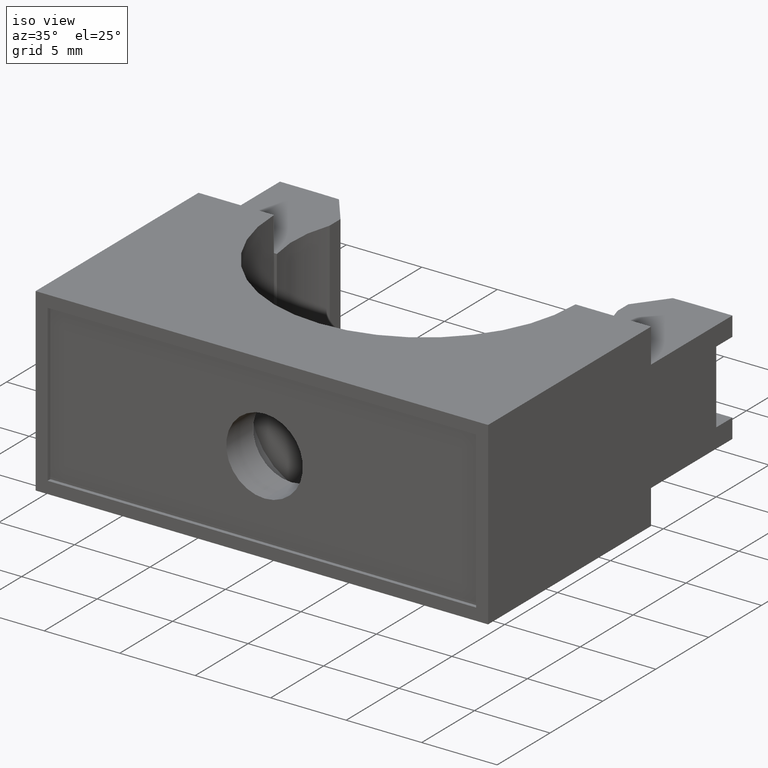
[diagram: clean part render]
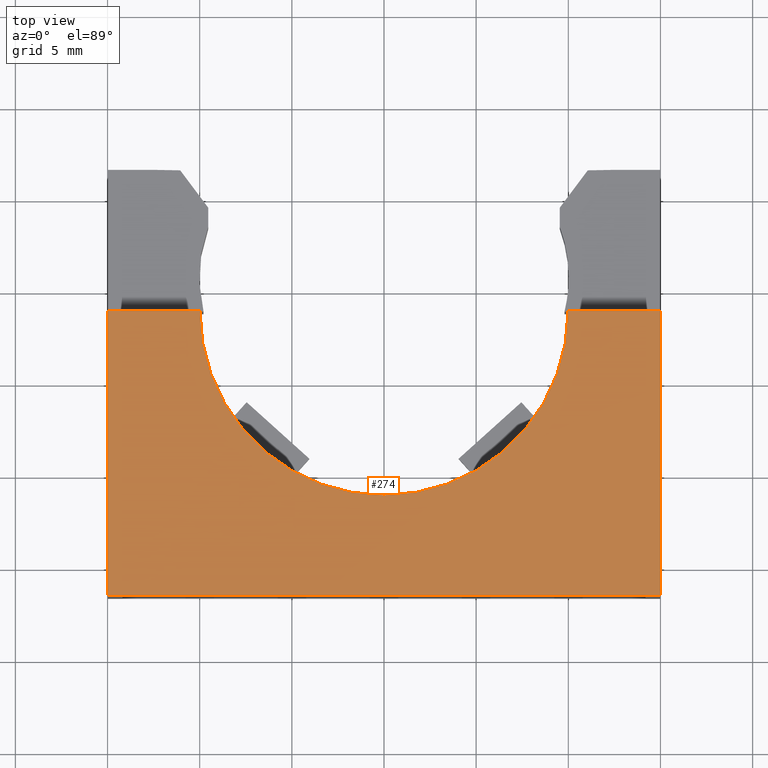
[diagram: tour spotlight — one face highlighted and labeled with its STEP entity id]
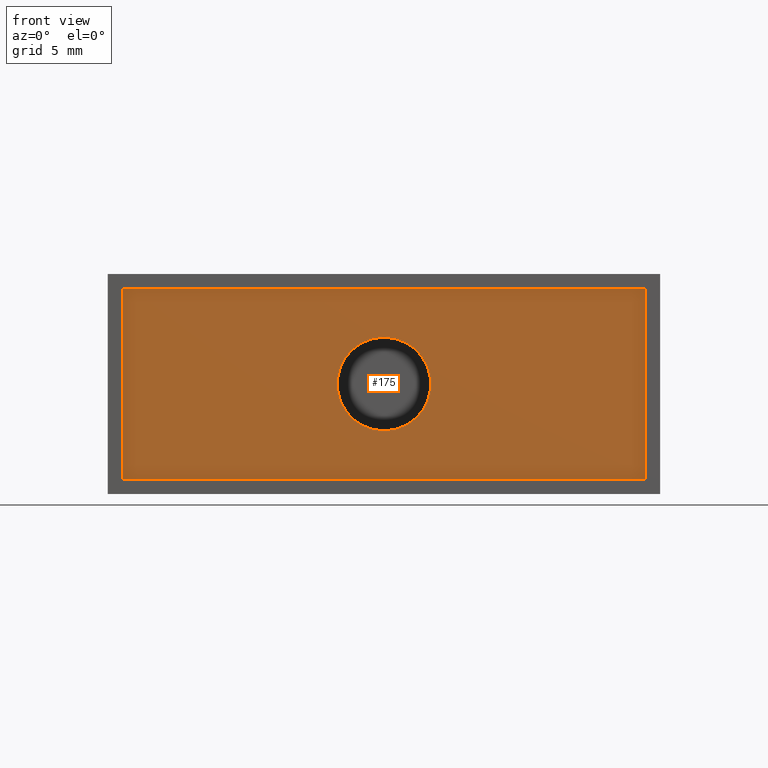
[diagram: tour spotlight — one face highlighted and labeled with its STEP entity id]
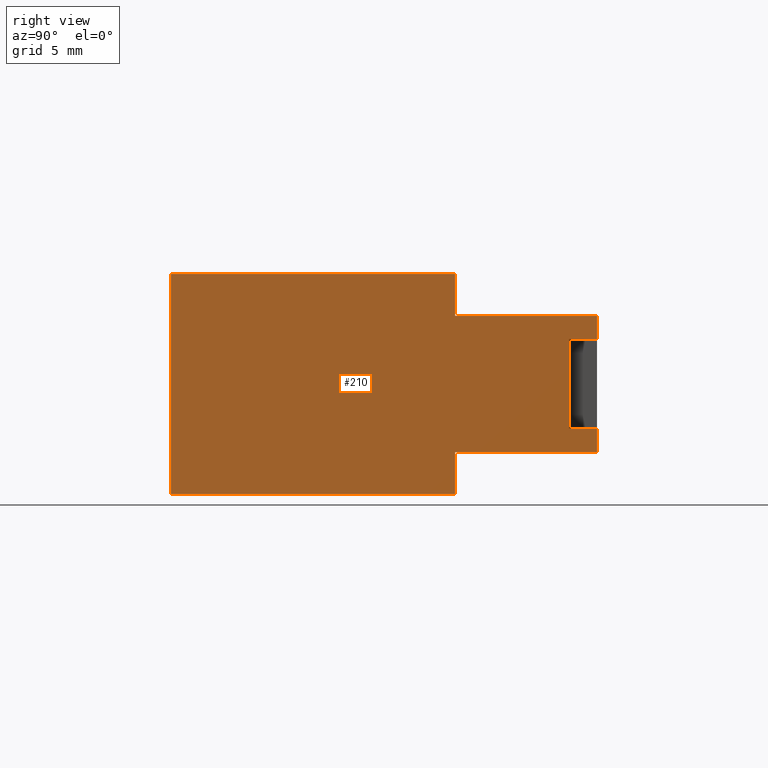
[diagram: tour spotlight — one face highlighted and labeled with its STEP entity id]
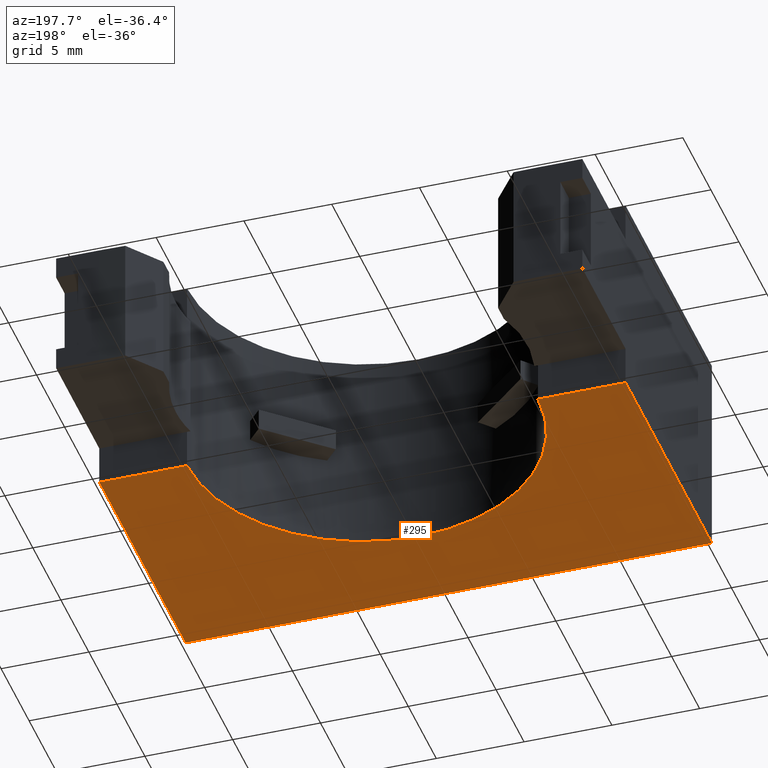
[diagram: tour spotlight — one face highlighted and labeled with its STEP entity id]
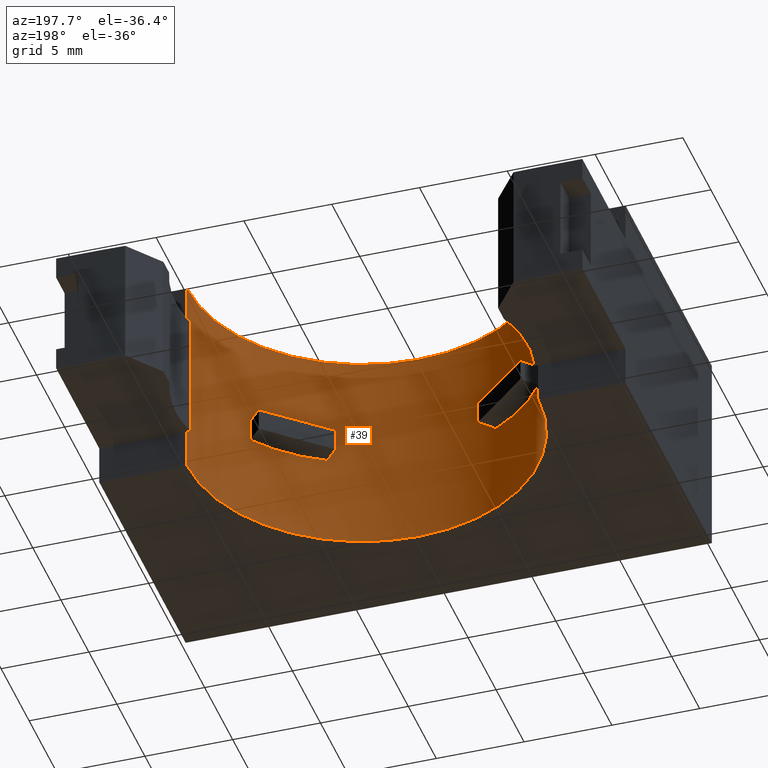
[diagram: tour spotlight — one face highlighted and labeled with its STEP entity id]
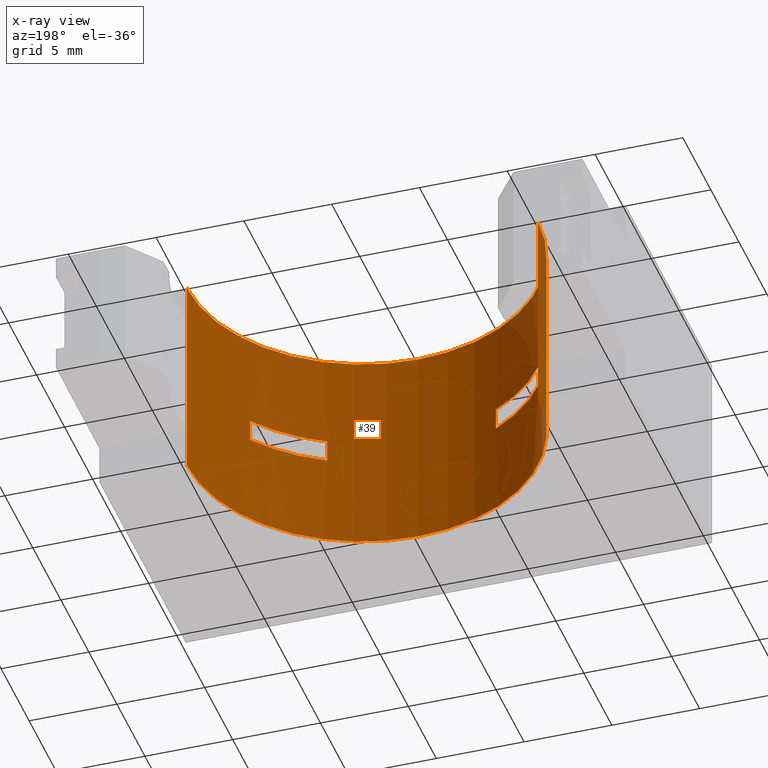
[diagram: x-ray of the same camera — body ghosted, this tour face saturated]
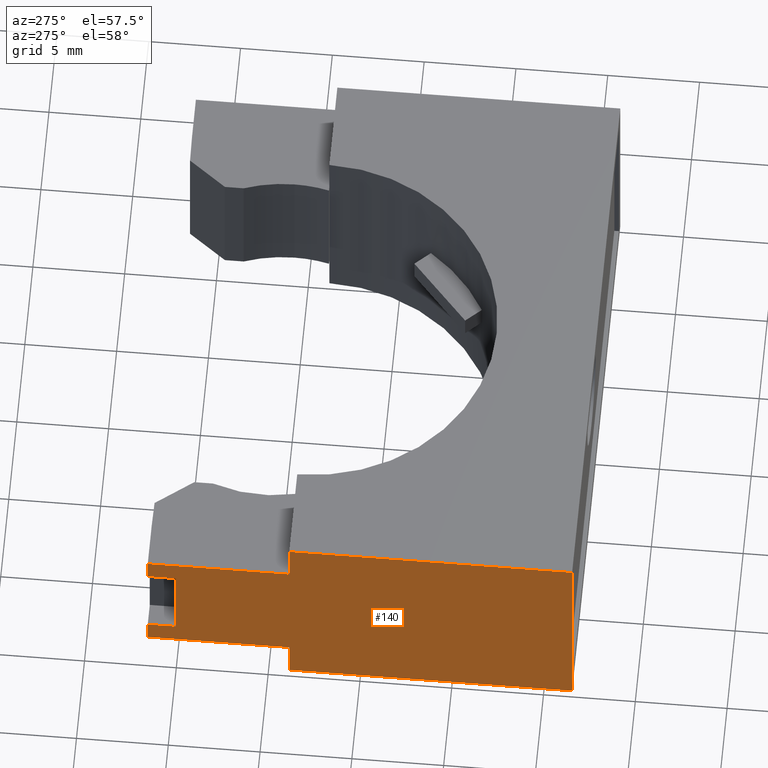
[diagram: tour spotlight — one face highlighted and labeled with its STEP entity id]
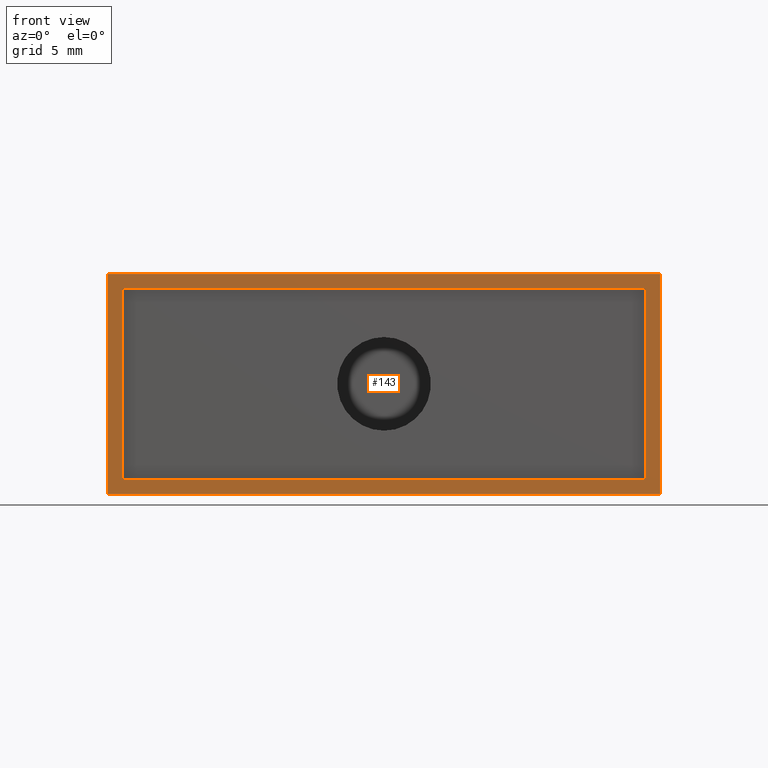
[diagram: tour spotlight — one face highlighted and labeled with its STEP entity id]
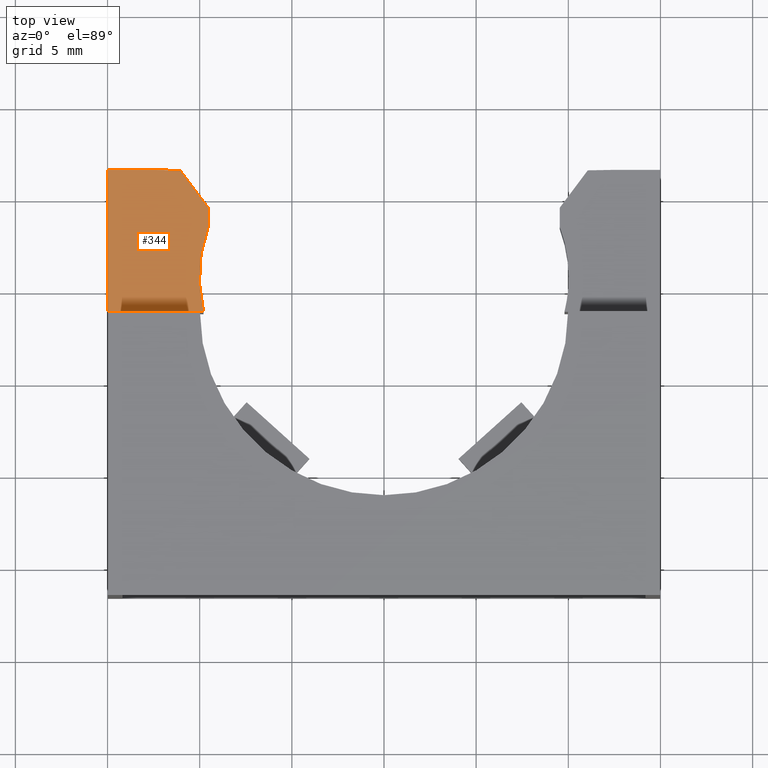
[diagram: tour spotlight — one face highlighted and labeled with its STEP entity id]
A machine part: a face-by-face anatomy tour. The part has 56 B-rep faces; the first image is the clean iso view, then the 8 largest visible faces are spotlighted one at a time (largest first), each with its STEP entity span.

Face 1 — top view, entity #274. In plain terms, the highlighted planar face has unit normal (-0, 0, 1).
Definition (entity closure, byte-faithful):
#18 = EDGE_CURVE ( 'NONE', #19, #28, #1723, .T. ) ;
#19 = VERTEX_POINT ( 'NONE', #1747 ) ;
#28 = VERTEX_POINT ( 'NONE', #1708 ) ;
#107 = VERTEX_POINT ( 'NONE', #690 ) ;
#118 = VERTEX_POINT ( 'NONE', #758 ) ;
#165 = EDGE_CURVE ( 'NONE', #171, #107, #788, .T. ) ;
#171 = VERTEX_POINT ( 'NONE', #819 ) ;
#220 = EDGE_CURVE ( 'NONE', #107, #118, #828, .T. ) ;
#252 = VERTEX_POINT ( 'NONE', #868 ) ;
#254 = EDGE_CURVE ( 'NONE', #118, #252, #863, .T. ) ;
#274 = ADVANCED_FACE ( 'NONE', ( #1032 ), #1059, .T. ) ;
#277 = EDGE_CURVE ( 'NONE', #171, #19, #992, .T. ) ;
#281 = ORIENTED_EDGE ( 'NONE', *, *, #277, .F. ) ;
#283 = ORIENTED_EDGE ( 'NONE', *, *, #337, .F. ) ;
#286 = ORIENTED_EDGE ( 'NONE', *, *, #220, .T. ) ;
#328 = ORIENTED_EDGE ( 'NONE', *, *, #254, .T. ) ;
#329 = EDGE_LOOP ( 'NONE', ( #281, #335, #286, #328, #283, #338 ) ) ;
#335 = ORIENTED_EDGE ( 'NONE', *, *, #165, .T. ) ;
#337 = EDGE_CURVE ( 'NONE', #28, #252, #1247, .T. ) ;
#338 = ORIENTED_EDGE ( 'NONE', *, *, #18, .F. ) ;
#690 = CARTESIAN_POINT ( 'NONE',  ( -0.5899999999999995200, -0.4549999999999996300, 0.4699999999999999700 ) ) ;
#758 = CARTESIAN_POINT ( 'NONE',  ( 0.5900000000000004100, -0.4549999999999996300, 0.4699999999999999700 ) ) ;
#783 = DIRECTION ( 'NONE',  ( 1.501015381134210600E-016, -1.000000000000000000, 0.0000000000000000000 ) ) ;
#784 = VECTOR ( 'NONE', #783, 39.37007874015748100 ) ;
#785 = CARTESIAN_POINT ( 'NONE',  ( -0.5899999999999997500, 0.4550000000000003500, 0.4699999999999999700 ) ) ;
#788 = LINE ( 'NONE', #785, #784 ) ;
#819 = CARTESIAN_POINT ( 'NONE',  ( -0.5899999999999997500, 0.1516666666666670000, 0.4699999999999999700 ) ) ;
#825 = DIRECTION ( 'NONE',  ( 1.000000000000000000, 0.0000000000000000000, 0.0000000000000000000 ) ) ;
#826 = VECTOR ( 'NONE', #825, 39.37007874015748100 ) ;
#827 = CARTESIAN_POINT ( 'NONE',  ( -0.5899999999999995200, -0.4549999999999996300, 0.4699999999999999700 ) ) ;
#828 = LINE ( 'NONE', #827, #826 ) ;
#860 = DIRECTION ( 'NONE',  ( -6.004061524536843300E-016, 1.000000000000000000, -0.0000000000000000000 ) ) ;
#861 = VECTOR ( 'NONE', #860, 39.37007874015748100 ) ;
#862 = CARTESIAN_POINT ( 'NONE',  ( 0.5899999999999998600, 0.4550000000000001800, 0.4699999999999999700 ) ) ;
#863 = LINE ( 'NONE', #862, #861 ) ;
#868 = CARTESIAN_POINT ( 'NONE',  ( 0.5900000000000004100, 0.1516666666666670000, 0.4699999999999999700 ) ) ;
#976 = DIRECTION ( 'NONE',  ( 1.000000000000000000, -0.0000000000000000000, -0.0000000000000000000 ) ) ;
#990 = VECTOR ( 'NONE', #976, 39.37007874015748100 ) ;
#991 = CARTESIAN_POINT ( 'NONE',  ( -0.5899999999999997500, 0.1516666666666670000, 0.4699999999999999700 ) ) ;
#992 = LINE ( 'NONE', #991, #990 ) ;
#1026 = DIRECTION ( 'NONE',  ( 1.000000000000000000, 0.0000000000000000000, 0.0000000000000000000 ) ) ;
#1027 = DIRECTION ( 'NONE',  ( -0.0000000000000000000, 0.0000000000000000000, 1.000000000000000000 ) ) ;
#1028 = CARTESIAN_POINT ( 'NONE',  ( -0.5899999999999995200, -0.4549999999999996300, 0.4699999999999999700 ) ) ;
#1032 = FACE_OUTER_BOUND ( 'NONE', #329, .T. ) ;
#1058 = AXIS2_PLACEMENT_3D ( 'NONE', #1028, #1027, #1026 ) ;
#1059 = PLANE ( 'NONE',  #1058 ) ;
#1244 = DIRECTION ( 'NONE',  ( 1.000000000000000000, -0.0000000000000000000, -0.0000000000000000000 ) ) ;
#1245 = VECTOR ( 'NONE', #1244, 39.37007874015748100 ) ;
#1246 = CARTESIAN_POINT ( 'NONE',  ( -0.5899999999999997500, 0.1516666666666670000, 0.4699999999999999700 ) ) ;
#1247 = LINE ( 'NONE', #1246, #1245 ) ;
#1708 = CARTESIAN_POINT ( 'NONE',  ( 0.3933333333333332600, 0.1516666666666670000, 0.4699999999999999700 ) ) ;
#1722 = AXIS2_PLACEMENT_3D ( 'NONE', #1750, #1749, #1748 ) ;
#1723 = CIRCLE ( 'NONE', #1722, 0.3933333333333332600 ) ;
#1747 = CARTESIAN_POINT ( 'NONE',  ( -0.3933333333333332600, 0.1516666666666670000, 0.4699999999999999700 ) ) ;
#1748 = DIRECTION ( 'NONE',  ( 1.000000000000000000, 0.0000000000000000000, 0.0000000000000000000 ) ) ;
#1749 = DIRECTION ( 'NONE',  ( 0.0000000000000000000, 0.0000000000000000000, 1.000000000000000000 ) ) ;
#1750 = CARTESIAN_POINT ( 'NONE',  ( 0.0000000000000000000, 0.1516666666666670600, 0.4699999999999999700 ) ) ;

Face 2 — front view, entity #175. In plain terms, the highlighted planar face has unit normal (-0, -1, 0).
Definition (entity closure, byte-faithful):
#69 = EDGE_CURVE ( 'NONE', #85, #86, #622, .T. ) ;
#85 = VERTEX_POINT ( 'NONE', #661 ) ;
#86 = VERTEX_POINT ( 'NONE', #683 ) ;
#122 = ORIENTED_EDGE ( 'NONE', *, *, #123, .T. ) ;
#123 = EDGE_CURVE ( 'NONE', #86, #85, #720, .T. ) ;
#124 = ORIENTED_EDGE ( 'NONE', *, *, #69, .T. ) ;
#133 = EDGE_CURVE ( 'NONE', #139, #134, #782, .T. ) ;
#134 = VERTEX_POINT ( 'NONE', #770 ) ;
#135 = ORIENTED_EDGE ( 'NONE', *, *, #166, .T. ) ;
#136 = EDGE_CURVE ( 'NONE', #167, #137, #724, .T. ) ;
#137 = VERTEX_POINT ( 'NONE', #779 ) ;
#138 = ORIENTED_EDGE ( 'NONE', *, *, #179, .T. ) ;
#139 = VERTEX_POINT ( 'NONE', #778 ) ;
#158 = ORIENTED_EDGE ( 'NONE', *, *, #133, .T. ) ;
#166 = EDGE_CURVE ( 'NONE', #134, #167, #805, .T. ) ;
#167 = VERTEX_POINT ( 'NONE', #806 ) ;
#168 = ORIENTED_EDGE ( 'NONE', *, *, #136, .T. ) ;
#170 = EDGE_LOOP ( 'NONE', ( #158, #135, #168, #138 ) ) ;
#175 = ADVANCED_FACE ( 'NONE', ( #817, #816 ), #799, .T. ) ;
#179 = EDGE_CURVE ( 'NONE', #137, #139, #907, .T. ) ;
#180 = EDGE_LOOP ( 'NONE', ( #122, #124 ) ) ;
#620 = CARTESIAN_POINT ( 'NONE',  ( 0.0000000000000000000, -0.4449999999999995100, 0.2349999999999999600 ) ) ;
#621 = AXIS2_PLACEMENT_3D ( 'NONE', #620, #625, #645 ) ;
#622 = CIRCLE ( 'NONE', #621, 0.1000000000000000200 ) ;
#625 = DIRECTION ( 'NONE',  ( -0.0000000000000000000, 1.000000000000000000, 7.639631403992348300E-017 ) ) ;
#645 = DIRECTION ( 'NONE',  ( 0.0000000000000000000, 0.0000000000000000000, 1.000000000000000000 ) ) ;
#661 = CARTESIAN_POINT ( 'NONE',  ( 1.224646799147353700E-017, -0.4449999999999995100, 0.1349999999999999300 ) ) ;
#683 = CARTESIAN_POINT ( 'NONE',  ( 0.0000000000000000000, -0.4449999999999995100, 0.3349999999999999600 ) ) ;
#718 = CARTESIAN_POINT ( 'NONE',  ( 0.0000000000000000000, -0.4449999999999995100, 0.2349999999999999600 ) ) ;
#719 = AXIS2_PLACEMENT_3D ( 'NONE', #718, #743, #742 ) ;
#720 = CIRCLE ( 'NONE', #719, 0.1000000000000000200 ) ;
#721 = DIRECTION ( 'NONE',  ( -0.0000000000000000000, -0.0000000000000000000, -1.000000000000000000 ) ) ;
#722 = VECTOR ( 'NONE', #721, 39.37007874015748100 ) ;
#723 = CARTESIAN_POINT ( 'NONE',  ( -0.5587499999999996400, -0.4449999999999995600, 0.03124999999999997600 ) ) ;
#724 = LINE ( 'NONE', #723, #722 ) ;
#742 = DIRECTION ( 'NONE',  ( 0.0000000000000000000, 0.0000000000000000000, 1.000000000000000000 ) ) ;
#743 = DIRECTION ( 'NONE',  ( -0.0000000000000000000, 1.000000000000000000, 7.639631403992348300E-017 ) ) ;
#770 = CARTESIAN_POINT ( 'NONE',  ( 0.5587500000000004100, -0.4449999999999996700, 0.4387499999999999700 ) ) ;
#771 = DIRECTION ( 'NONE',  ( -0.0000000000000000000, -0.0000000000000000000, 1.000000000000000000 ) ) ;
#772 = VECTOR ( 'NONE', #771, 39.37007874015748100 ) ;
#773 = CARTESIAN_POINT ( 'NONE',  ( 0.5587500000000004100, -0.4449999999999996700, 0.4387499999999999700 ) ) ;
#778 = CARTESIAN_POINT ( 'NONE',  ( 0.5587500000000004100, -0.4449999999999996700, 0.03125000000000000000 ) ) ;
#779 = CARTESIAN_POINT ( 'NONE',  ( -0.5587499999999996400, -0.4449999999999995600, 0.03124999999999997600 ) ) ;
#782 = LINE ( 'NONE', #773, #772 ) ;
#790 = AXIS2_PLACEMENT_3D ( 'NONE', #798, #797, #796 ) ;
#796 = DIRECTION ( 'NONE',  ( 1.000000000000000000, -1.222303352869916500E-016, 0.0000000000000000000 ) ) ;
#797 = DIRECTION ( 'NONE',  ( -1.222303352869916500E-016, -1.000000000000000000, 0.0000000000000000000 ) ) ;
#798 = CARTESIAN_POINT ( 'NONE',  ( 0.5587500000000004100, -0.4449999999999996700, 0.4387499999999999700 ) ) ;
#799 = PLANE ( 'NONE',  #790 ) ;
#805 = LINE ( 'NONE', #820, #808 ) ;
#806 = CARTESIAN_POINT ( 'NONE',  ( -0.5587499999999996400, -0.4449999999999995600, 0.4387499999999999700 ) ) ;
#807 = DIRECTION ( 'NONE',  ( -1.000000000000000000, 1.222303352869916500E-016, -0.0000000000000000000 ) ) ;
#808 = VECTOR ( 'NONE', #807, 39.37007874015748100 ) ;
#816 = FACE_BOUND ( 'NONE', #180, .T. ) ;
#817 = FACE_OUTER_BOUND ( 'NONE', #170, .T. ) ;
#820 = CARTESIAN_POINT ( 'NONE',  ( -0.5587499999999996400, -0.4449999999999995600, 0.4387499999999999700 ) ) ;
#886 = DIRECTION ( 'NONE',  ( 1.000000000000000000, -1.222303352869916500E-016, 2.291818786631093000E-017 ) ) ;
#906 = CARTESIAN_POINT ( 'NONE',  ( 0.5587500000000004100, -0.4449999999999996700, 0.03125000000000000000 ) ) ;
#907 = LINE ( 'NONE', #906, #913 ) ;
#913 = VECTOR ( 'NONE', #886, 39.37007874015748100 ) ;

Face 3 — right view, entity #210. In plain terms, the highlighted planar face has unit normal (-1, -0, 0).
Definition (entity closure, byte-faithful):
#99 = VERTEX_POINT ( 'NONE', #676 ) ;
#117 = EDGE_CURVE ( 'NONE', #118, #99, #728, .T. ) ;
#118 = VERTEX_POINT ( 'NONE', #758 ) ;
#189 = VERTEX_POINT ( 'NONE', #832 ) ;
#198 = ORIENTED_EDGE ( 'NONE', *, *, #214, .F. ) ;
#204 = VERTEX_POINT ( 'NONE', #900 ) ;
#205 = ORIENTED_EDGE ( 'NONE', *, *, #206, .F. ) ;
#206 = EDGE_CURVE ( 'NONE', #207, #204, #845, .T. ) ;
#207 = VERTEX_POINT ( 'NONE', #858 ) ;
#208 = ORIENTED_EDGE ( 'NONE', *, *, #223, .F. ) ;
#209 = VERTEX_POINT ( 'NONE', #857 ) ;
#210 = ADVANCED_FACE ( 'NONE', ( #856 ), #855, .F. ) ;
#211 = ORIENTED_EDGE ( 'NONE', *, *, #212, .F. ) ;
#212 = EDGE_CURVE ( 'NONE', #209, #237, #891, .T. ) ;
#214 = EDGE_CURVE ( 'NONE', #189, #239, #919, .T. ) ;
#218 = ORIENTED_EDGE ( 'NONE', *, *, #219, .T. ) ;
#219 = EDGE_CURVE ( 'NONE', #99, #204, #917, .T. ) ;
#221 = VERTEX_POINT ( 'NONE', #824 ) ;
#222 = VERTEX_POINT ( 'NONE', #823 ) ;
#223 = EDGE_CURVE ( 'NONE', #234, #207, #912, .T. ) ;
#230 = EDGE_CURVE ( 'NONE', #221, #239, #837, .T. ) ;
#231 = EDGE_LOOP ( 'NONE', ( #232, #238, #198, #257, #250, #256, #255, #218, #205, #208, #235, #211 ) ) ;
#232 = ORIENTED_EDGE ( 'NONE', *, *, #233, .F. ) ;
#233 = EDGE_CURVE ( 'NONE', #221, #209, #851, .T. ) ;
#234 = VERTEX_POINT ( 'NONE', #847 ) ;
#235 = ORIENTED_EDGE ( 'NONE', *, *, #236, .F. ) ;
#236 = EDGE_CURVE ( 'NONE', #237, #234, #965, .T. ) ;
#237 = VERTEX_POINT ( 'NONE', #961 ) ;
#238 = ORIENTED_EDGE ( 'NONE', *, *, #230, .T. ) ;
#239 = VERTEX_POINT ( 'NONE', #960 ) ;
#250 = ORIENTED_EDGE ( 'NONE', *, *, #251, .F. ) ;
#251 = EDGE_CURVE ( 'NONE', #252, #222, #943, .T. ) ;
#252 = VERTEX_POINT ( 'NONE', #868 ) ;
#254 = EDGE_CURVE ( 'NONE', #118, #252, #863, .T. ) ;
#255 = ORIENTED_EDGE ( 'NONE', *, *, #117, .T. ) ;
#256 = ORIENTED_EDGE ( 'NONE', *, *, #254, .F. ) ;
#257 = ORIENTED_EDGE ( 'NONE', *, *, #258, .F. ) ;
#258 = EDGE_CURVE ( 'NONE', #222, #189, #859, .T. ) ;
#676 = CARTESIAN_POINT ( 'NONE',  ( 0.5900000000000004100, -0.4549999999999996300, 0.0000000000000000000 ) ) ;
#710 = DIRECTION ( 'NONE',  ( -0.0000000000000000000, -0.0000000000000000000, -1.000000000000000000 ) ) ;
#728 = LINE ( 'NONE', #769, #751 ) ;
#751 = VECTOR ( 'NONE', #710, 39.37007874015748100 ) ;
#758 = CARTESIAN_POINT ( 'NONE',  ( 0.5900000000000004100, -0.4549999999999996300, 0.4699999999999999700 ) ) ;
#769 = CARTESIAN_POINT ( 'NONE',  ( 0.5900000000000004100, -0.4549999999999996300, 0.4699999999999999700 ) ) ;
#823 = CARTESIAN_POINT ( 'NONE',  ( 0.5900000000000004100, 0.1516666666666670000, 0.3804500000000002300 ) ) ;
#824 = CARTESIAN_POINT ( 'NONE',  ( 0.5900000000000004100, 0.3950000000000003000, 0.3302250000000000500 ) ) ;
#832 = CARTESIAN_POINT ( 'NONE',  ( 0.5900000000000004100, 0.4550000000000001800, 0.3804500000000002900 ) ) ;
#835 = VECTOR ( 'NONE', #852, 39.37007874015748100 ) ;
#836 = CARTESIAN_POINT ( 'NONE',  ( 0.5900000000000004100, 0.3950000000000003000, 0.3302250000000000500 ) ) ;
#837 = LINE ( 'NONE', #836, #835 ) ;
#842 = DIRECTION ( 'NONE',  ( -0.0000000000000000000, -0.0000000000000000000, -1.000000000000000000 ) ) ;
#843 = VECTOR ( 'NONE', #842, 39.37007874015748100 ) ;
#844 = CARTESIAN_POINT ( 'NONE',  ( 0.5900000000000004100, 0.1516666666666670600, 0.0000000000000000000 ) ) ;
#845 = LINE ( 'NONE', #844, #843 ) ;
#847 = CARTESIAN_POINT ( 'NONE',  ( 0.5900000000000004100, 0.4550000000000001800, 0.08954999999999976900 ) ) ;
#848 = DIRECTION ( 'NONE',  ( -3.586043572675578000E-016, -0.0000000000000000000, -1.000000000000000000 ) ) ;
#849 = VECTOR ( 'NONE', #848, 39.37007874015748100 ) ;
#850 = CARTESIAN_POINT ( 'NONE',  ( 0.5900000000000003000, 0.3950000000000003000, 0.1397749999999994600 ) ) ;
#851 = LINE ( 'NONE', #850, #849 ) ;
#852 = DIRECTION ( 'NONE',  ( -0.0000000000000000000, 1.000000000000000000, -0.0000000000000000000 ) ) ;
#853 = CARTESIAN_POINT ( 'NONE',  ( 0.5899999999999998600, 0.4550000000000001800, 0.4699999999999999700 ) ) ;
#854 = AXIS2_PLACEMENT_3D ( 'NONE', #853, #896, #895 ) ;
#855 = PLANE ( 'NONE',  #854 ) ;
#856 = FACE_OUTER_BOUND ( 'NONE', #231, .T. ) ;
#857 = CARTESIAN_POINT ( 'NONE',  ( 0.5900000000000003000, 0.3950000000000003000, 0.1397749999999994600 ) ) ;
#858 = CARTESIAN_POINT ( 'NONE',  ( 0.5900000000000004100, 0.1516666666666670600, 0.08954999999999972700 ) ) ;
#859 = LINE ( 'NONE', #938, #937 ) ;
#860 = DIRECTION ( 'NONE',  ( -6.004061524536843300E-016, 1.000000000000000000, -0.0000000000000000000 ) ) ;
#861 = VECTOR ( 'NONE', #860, 39.37007874015748100 ) ;
#862 = CARTESIAN_POINT ( 'NONE',  ( 0.5899999999999998600, 0.4550000000000001800, 0.4699999999999999700 ) ) ;
#863 = LINE ( 'NONE', #862, #861 ) ;
#868 = CARTESIAN_POINT ( 'NONE',  ( 0.5900000000000004100, 0.1516666666666670000, 0.4699999999999999700 ) ) ;
#869 = DIRECTION ( 'NONE',  ( 0.0000000000000000000, 1.906649911825985100E-016, -1.000000000000000000 ) ) ;
#870 = VECTOR ( 'NONE', #869, 39.37007874015748100 ) ;
#871 = CARTESIAN_POINT ( 'NONE',  ( 0.5900000000000004100, 0.1516666666666670000, 0.4699999999999999700 ) ) ;
#888 = DIRECTION ( 'NONE',  ( -0.0000000000000000000, 1.000000000000000000, -0.0000000000000000000 ) ) ;
#889 = VECTOR ( 'NONE', #888, 39.37007874015748100 ) ;
#890 = CARTESIAN_POINT ( 'NONE',  ( 0.5900000000000003000, 0.3950000000000003000, 0.1397749999999994600 ) ) ;
#891 = LINE ( 'NONE', #890, #889 ) ;
#895 = DIRECTION ( 'NONE',  ( 6.004061524536843300E-016, -1.000000000000000000, 0.0000000000000000000 ) ) ;
#896 = DIRECTION ( 'NONE',  ( -1.000000000000000000, -6.004061524536843300E-016, 0.0000000000000000000 ) ) ;
#897 = DIRECTION ( 'NONE',  ( -0.0000000000000000000, -0.0000000000000000000, -1.000000000000000000 ) ) ;
#898 = VECTOR ( 'NONE', #897, 39.37007874015748100 ) ;
#899 = CARTESIAN_POINT ( 'NONE',  ( 0.5899999999999998600, 0.4550000000000001800, 0.4699999999999999700 ) ) ;
#900 = CARTESIAN_POINT ( 'NONE',  ( 0.5900000000000004100, 0.1516666666666670600, 0.0000000000000000000 ) ) ;
#909 = DIRECTION ( 'NONE',  ( 0.0000000000000000000, -1.000000000000000000, -1.125761535850658700E-016 ) ) ;
#910 = VECTOR ( 'NONE', #909, 39.37007874015748100 ) ;
#911 = CARTESIAN_POINT ( 'NONE',  ( 0.5900000000000004100, 0.4550000000000001800, 0.08954999999999976900 ) ) ;
#912 = LINE ( 'NONE', #911, #910 ) ;
#914 = DIRECTION ( 'NONE',  ( -6.004061524536843300E-016, 1.000000000000000000, -0.0000000000000000000 ) ) ;
#915 = VECTOR ( 'NONE', #914, 39.37007874015748100 ) ;
#916 = CARTESIAN_POINT ( 'NONE',  ( 0.5899999999999998600, 0.4550000000000001800, 0.0000000000000000000 ) ) ;
#917 = LINE ( 'NONE', #916, #915 ) ;
#919 = LINE ( 'NONE', #899, #898 ) ;
#936 = DIRECTION ( 'NONE',  ( -0.0000000000000000000, 1.000000000000000000, 2.251523071701317000E-016 ) ) ;
#937 = VECTOR ( 'NONE', #936, 39.37007874015748100 ) ;
#938 = CARTESIAN_POINT ( 'NONE',  ( 0.5900000000000004100, 0.4550000000000001800, 0.3804500000000002900 ) ) ;
#943 = LINE ( 'NONE', #871, #870 ) ;
#960 = CARTESIAN_POINT ( 'NONE',  ( 0.5900000000000004100, 0.4550000000000002900, 0.3302250000000000500 ) ) ;
#961 = CARTESIAN_POINT ( 'NONE',  ( 0.5899999999999998600, 0.4550000000000001800, 0.1397749999999995900 ) ) ;
#962 = DIRECTION ( 'NONE',  ( -0.0000000000000000000, -0.0000000000000000000, -1.000000000000000000 ) ) ;
#963 = VECTOR ( 'NONE', #962, 39.37007874015748100 ) ;
#964 = CARTESIAN_POINT ( 'NONE',  ( 0.5899999999999998600, 0.4550000000000001800, 0.4699999999999999700 ) ) ;
#965 = LINE ( 'NONE', #964, #963 ) ;

Face 4 — auxiliary view, entity #295. In plain terms, the highlighted planar face has unit normal (-0, 0, 1).
Definition (entity closure, byte-faithful):
#8 = VERTEX_POINT ( 'NONE', #1690 ) ;
#13 = EDGE_CURVE ( 'NONE', #8, #23, #1659, .T. ) ;
#23 = VERTEX_POINT ( 'NONE', #1642 ) ;
#99 = VERTEX_POINT ( 'NONE', #676 ) ;
#121 = EDGE_CURVE ( 'NONE', #183, #99, #748, .T. ) ;
#141 = VERTEX_POINT ( 'NONE', #781 ) ;
#183 = VERTEX_POINT ( 'NONE', #918 ) ;
#188 = EDGE_CURVE ( 'NONE', #141, #183, #893, .T. ) ;
#204 = VERTEX_POINT ( 'NONE', #900 ) ;
#219 = EDGE_CURVE ( 'NONE', #99, #204, #917, .T. ) ;
#246 = ORIENTED_EDGE ( 'NONE', *, *, #247, .T. ) ;
#247 = EDGE_CURVE ( 'NONE', #23, #204, #942, .T. ) ;
#248 = ORIENTED_EDGE ( 'NONE', *, *, #219, .F. ) ;
#253 = EDGE_CURVE ( 'NONE', #141, #8, #867, .T. ) ;
#261 = ORIENTED_EDGE ( 'NONE', *, *, #253, .T. ) ;
#276 = EDGE_LOOP ( 'NONE', ( #284, #261, #327, #246, #248, #285 ) ) ;
#284 = ORIENTED_EDGE ( 'NONE', *, *, #188, .F. ) ;
#285 = ORIENTED_EDGE ( 'NONE', *, *, #121, .F. ) ;
#295 = ADVANCED_FACE ( 'NONE', ( #1001 ), #1038, .F. ) ;
#327 = ORIENTED_EDGE ( 'NONE', *, *, #13, .T. ) ;
#676 = CARTESIAN_POINT ( 'NONE',  ( 0.5900000000000004100, -0.4549999999999996300, 0.0000000000000000000 ) ) ;
#731 = DIRECTION ( 'NONE',  ( 1.000000000000000000, 0.0000000000000000000, 0.0000000000000000000 ) ) ;
#732 = VECTOR ( 'NONE', #731, 39.37007874015748100 ) ;
#748 = LINE ( 'NONE', #774, #732 ) ;
#774 = CARTESIAN_POINT ( 'NONE',  ( -0.5899999999999995200, -0.4549999999999996300, 0.0000000000000000000 ) ) ;
#781 = CARTESIAN_POINT ( 'NONE',  ( -0.5899999999999997500, 0.1516666666666670600, 0.0000000000000000000 ) ) ;
#833 = DIRECTION ( 'NONE',  ( 1.501015381134210600E-016, -1.000000000000000000, 0.0000000000000000000 ) ) ;
#834 = VECTOR ( 'NONE', #833, 39.37007874015748100 ) ;
#864 = DIRECTION ( 'NONE',  ( 1.000000000000000000, -0.0000000000000000000, -0.0000000000000000000 ) ) ;
#865 = VECTOR ( 'NONE', #864, 39.37007874015748100 ) ;
#866 = CARTESIAN_POINT ( 'NONE',  ( -0.5899999999999997500, 0.1516666666666670600, 0.0000000000000000000 ) ) ;
#867 = LINE ( 'NONE', #866, #865 ) ;
#892 = CARTESIAN_POINT ( 'NONE',  ( -0.5899999999999997500, 0.4550000000000003500, 0.0000000000000000000 ) ) ;
#893 = LINE ( 'NONE', #892, #834 ) ;
#900 = CARTESIAN_POINT ( 'NONE',  ( 0.5900000000000004100, 0.1516666666666670600, 0.0000000000000000000 ) ) ;
#914 = DIRECTION ( 'NONE',  ( -6.004061524536843300E-016, 1.000000000000000000, -0.0000000000000000000 ) ) ;
#915 = VECTOR ( 'NONE', #914, 39.37007874015748100 ) ;
#916 = CARTESIAN_POINT ( 'NONE',  ( 0.5899999999999998600, 0.4550000000000001800, 0.0000000000000000000 ) ) ;
#917 = LINE ( 'NONE', #916, #915 ) ;
#918 = CARTESIAN_POINT ( 'NONE',  ( -0.5899999999999995200, -0.4549999999999996300, 0.0000000000000000000 ) ) ;
#939 = DIRECTION ( 'NONE',  ( 1.000000000000000000, -0.0000000000000000000, -0.0000000000000000000 ) ) ;
#940 = VECTOR ( 'NONE', #939, 39.37007874015748100 ) ;
#941 = CARTESIAN_POINT ( 'NONE',  ( -0.5899999999999997500, 0.1516666666666670600, 0.0000000000000000000 ) ) ;
#942 = LINE ( 'NONE', #941, #940 ) ;
#987 = DIRECTION ( 'NONE',  ( -0.0000000000000000000, 0.0000000000000000000, 1.000000000000000000 ) ) ;
#988 = AXIS2_PLACEMENT_3D ( 'NONE', #1037, #987, #1010 ) ;
#1001 = FACE_OUTER_BOUND ( 'NONE', #276, .T. ) ;
#1010 = DIRECTION ( 'NONE',  ( 1.000000000000000000, 0.0000000000000000000, 0.0000000000000000000 ) ) ;
#1037 = CARTESIAN_POINT ( 'NONE',  ( -0.5899999999999995200, -0.4549999999999996300, 0.0000000000000000000 ) ) ;
#1038 = PLANE ( 'NONE',  #988 ) ;
#1642 = CARTESIAN_POINT ( 'NONE',  ( 0.3933333333333332600, 0.1516666666666670600, 0.0000000000000000000 ) ) ;
#1657 = CARTESIAN_POINT ( 'NONE',  ( 0.0000000000000000000, 0.1516666666666670600, 0.0000000000000000000 ) ) ;
#1658 = AXIS2_PLACEMENT_3D ( 'NONE', #1657, #1726, #1725 ) ;
#1659 = CIRCLE ( 'NONE', #1658, 0.3933333333333332600 ) ;
#1690 = CARTESIAN_POINT ( 'NONE',  ( -0.3933333333333332600, 0.1516666666666670600, 0.0000000000000000000 ) ) ;
#1725 = DIRECTION ( 'NONE',  ( 1.000000000000000000, 0.0000000000000000000, 0.0000000000000000000 ) ) ;
#1726 = DIRECTION ( 'NONE',  ( 0.0000000000000000000, 0.0000000000000000000, 1.000000000000000000 ) ) ;

Face 5 — auxiliary view, entity #39. An x-ray twin of the same camera follows (body ghosted, this face saturated) — the face is partly hidden behind the body. In plain terms, the highlighted cylindrical surface (partial cylindrical patch) has radius 9.9907 mm, axis along (-0, -0, 1).
Definition (entity closure, byte-faithful):
#1 = ORIENTED_EDGE ( 'NONE', *, *, #11, .F. ) ;
#2 = EDGE_CURVE ( 'NONE', #23, #27, #1632, .T. ) ;
#3 = EDGE_CURVE ( 'NONE', #14, #19, #1717, .T. ) ;
#4 = ORIENTED_EDGE ( 'NONE', *, *, #53, .T. ) ;
#5 = EDGE_CURVE ( 'NONE', #6, #84, #1673, .T. ) ;
#6 = VERTEX_POINT ( 'NONE', #1668 ) ;
#8 = VERTEX_POINT ( 'NONE', #1690 ) ;
#9 = ORIENTED_EDGE ( 'NONE', *, *, #96, .T. ) ;
#10 = VERTEX_POINT ( 'NONE', #1689 ) ;
#11 = EDGE_CURVE ( 'NONE', #84, #10, #1688, .T. ) ;
#12 = ORIENTED_EDGE ( 'NONE', *, *, #5, .F. ) ;
#13 = EDGE_CURVE ( 'NONE', #8, #23, #1659, .T. ) ;
#14 = VERTEX_POINT ( 'NONE', #1724 ) ;
#15 = ORIENTED_EDGE ( 'NONE', *, *, #3, .T. ) ;
#16 = ORIENTED_EDGE ( 'NONE', *, *, #13, .F. ) ;
#17 = ORIENTED_EDGE ( 'NONE', *, *, #2, .F. ) ;
#18 = EDGE_CURVE ( 'NONE', #19, #28, #1723, .T. ) ;
#19 = VERTEX_POINT ( 'NONE', #1747 ) ;
#23 = VERTEX_POINT ( 'NONE', #1642 ) ;
#25 = ORIENTED_EDGE ( 'NONE', *, *, #26, .F. ) ;
#26 = EDGE_CURVE ( 'NONE', #27, #50, #1713, .T. ) ;
#27 = VERTEX_POINT ( 'NONE', #1709 ) ;
#28 = VERTEX_POINT ( 'NONE', #1708 ) ;
#29 = ORIENTED_EDGE ( 'NONE', *, *, #49, .F. ) ;
#39 = ADVANCED_FACE ( 'NONE', ( #1700, #1694, #1693 ), #1692, .F. ) ;
#41 = ORIENTED_EDGE ( 'NONE', *, *, #18, .T. ) ;
#45 = EDGE_LOOP ( 'NONE', ( #41, #29, #25, #17, #16, #54, #4, #15 ) ) ;
#49 = EDGE_CURVE ( 'NONE', #50, #28, #1734, .T. ) ;
#50 = VERTEX_POINT ( 'NONE', #1730 ) ;
#53 = EDGE_CURVE ( 'NONE', #88, #14, #1754, .T. ) ;
#54 = ORIENTED_EDGE ( 'NONE', *, *, #91, .T. ) ;
#61 = ORIENTED_EDGE ( 'NONE', *, *, #62, .T. ) ;
#62 = EDGE_CURVE ( 'NONE', #97, #71, #1655, .T. ) ;
#70 = EDGE_LOOP ( 'NONE', ( #1, #12, #9, #162 ) ) ;
#71 = VERTEX_POINT ( 'NONE', #646 ) ;
#75 = VERTEX_POINT ( 'NONE', #629 ) ;
#76 = ORIENTED_EDGE ( 'NONE', *, *, #161, .F. ) ;
#77 = ORIENTED_EDGE ( 'NONE', *, *, #159, .F. ) ;
#78 = VERTEX_POINT ( 'NONE', #633 ) ;
#84 = VERTEX_POINT ( 'NONE', #684 ) ;
#88 = VERTEX_POINT ( 'NONE', #680 ) ;
#91 = EDGE_CURVE ( 'NONE', #8, #88, #665, .T. ) ;
#96 = EDGE_CURVE ( 'NONE', #6, #145, #658, .T. ) ;
#97 = VERTEX_POINT ( 'NONE', #654 ) ;
#98 = EDGE_CURVE ( 'NONE', #145, #10, #668, .T. ) ;
#145 = VERTEX_POINT ( 'NONE', #747 ) ;
#159 = EDGE_CURVE ( 'NONE', #78, #75, #814, .T. ) ;
#160 = ORIENTED_EDGE ( 'NONE', *, *, #169, .T. ) ;
#161 = EDGE_CURVE ( 'NONE', #75, #71, #801, .T. ) ;
#162 = ORIENTED_EDGE ( 'NONE', *, *, #98, .T. ) ;
#169 = EDGE_CURVE ( 'NONE', #78, #97, #812, .T. ) ;
#181 = EDGE_LOOP ( 'NONE', ( #77, #160, #61, #76 ) ) ;
#629 = CARTESIAN_POINT ( 'NONE',  ( 0.1891383116905818500, -0.1932069480995939900, 0.2099999999999999900 ) ) ;
#633 = CARTESIAN_POINT ( 'NONE',  ( 0.3232140239537951700, -0.07248463453568283800, 0.2099999999999999900 ) ) ;
#646 = CARTESIAN_POINT ( 'NONE',  ( 0.1891383116905817900, -0.1932069480995939100, 0.2599999999999999500 ) ) ;
#654 = CARTESIAN_POINT ( 'NONE',  ( 0.3232140239537951700, -0.07248463453568283800, 0.2600000000000000100 ) ) ;
#655 = DIRECTION ( 'NONE',  ( -0.0000000000000000000, -8.326672684688672800E-017, 1.000000000000000000 ) ) ;
#656 = VECTOR ( 'NONE', #655, 39.37007874015748100 ) ;
#657 = CARTESIAN_POINT ( 'NONE',  ( -0.1891383116905819800, -0.1932069480995939600, 0.2099999999999999400 ) ) ;
#658 = LINE ( 'NONE', #657, #656 ) ;
#662 = DIRECTION ( 'NONE',  ( -0.0000000000000000000, -0.0000000000000000000, 1.000000000000000000 ) ) ;
#663 = VECTOR ( 'NONE', #662, 39.37007874015748100 ) ;
#664 = CARTESIAN_POINT ( 'NONE',  ( -0.3933333333333332600, 0.1516666666666670600, 0.0000000000000000000 ) ) ;
#665 = LINE ( 'NONE', #664, #663 ) ;
#666 = CARTESIAN_POINT ( 'NONE',  ( 0.0000000000000000000, 0.1516666666666670600, 0.2600000000000000100 ) ) ;
#667 = AXIS2_PLACEMENT_3D ( 'NONE', #666, #678, #677 ) ;
#668 = CIRCLE ( 'NONE', #667, 0.3933333333333334200 ) ;
#677 = DIRECTION ( 'NONE',  ( 0.0000000000000000000, 1.000000000000000000, 8.681720318848292500E-017 ) ) ;
#678 = DIRECTION ( 'NONE',  ( 0.0000000000000000000, 8.326672684688674100E-017, -1.000000000000000000 ) ) ;
#680 = CARTESIAN_POINT ( 'NONE',  ( -0.3933333333333332600, 0.1516666666666670600, 0.08954999999999972700 ) ) ;
#684 = CARTESIAN_POINT ( 'NONE',  ( -0.3232140239537952800, -0.07248463453568267100, 0.2099999999999999900 ) ) ;
#747 = CARTESIAN_POINT ( 'NONE',  ( -0.1891383116905819800, -0.1932069480995939600, 0.2599999999999999500 ) ) ;
#791 = DIRECTION ( 'NONE',  ( -0.0000000000000000000, -8.326672684688672800E-017, 1.000000000000000000 ) ) ;
#792 = DIRECTION ( 'NONE',  ( 0.0000000000000000000, -1.000000000000000000, -8.681720318848293700E-017 ) ) ;
#793 = CARTESIAN_POINT ( 'NONE',  ( 0.0000000000000000000, 0.1516666666666670600, 0.2099999999999999900 ) ) ;
#800 = AXIS2_PLACEMENT_3D ( 'NONE', #793, #802, #792 ) ;
#801 = LINE ( 'NONE', #804, #803 ) ;
#802 = DIRECTION ( 'NONE',  ( -0.0000000000000000000, 8.326672684688674100E-017, -1.000000000000000000 ) ) ;
#803 = VECTOR ( 'NONE', #791, 39.37007874015748100 ) ;
#804 = CARTESIAN_POINT ( 'NONE',  ( 0.1891383116905818500, -0.1932069480995939900, 0.2099999999999999900 ) ) ;
#809 = DIRECTION ( 'NONE',  ( -0.0000000000000000000, -8.326672684688672800E-017, 1.000000000000000000 ) ) ;
#810 = VECTOR ( 'NONE', #809, 39.37007874015748100 ) ;
#811 = CARTESIAN_POINT ( 'NONE',  ( 0.3232140239537951700, -0.07248463453568283800, 0.2099999999999999900 ) ) ;
#812 = LINE ( 'NONE', #811, #810 ) ;
#814 = CIRCLE ( 'NONE', #800, 0.3933333333333333700 ) ;
#1625 = DIRECTION ( 'NONE',  ( 1.000000000000000000, 0.0000000000000000000, 0.0000000000000000000 ) ) ;
#1626 = DIRECTION ( 'NONE',  ( -0.0000000000000000000, -0.0000000000000000000, 1.000000000000000000 ) ) ;
#1627 = CARTESIAN_POINT ( 'NONE',  ( 0.0000000000000000000, 0.1516666666666670600, 0.0000000000000000000 ) ) ;
#1628 = AXIS2_PLACEMENT_3D ( 'NONE', #1627, #1626, #1625 ) ;
#1632 = LINE ( 'NONE', #1636, #1635 ) ;
#1634 = DIRECTION ( 'NONE',  ( -0.0000000000000000000, -0.0000000000000000000, 1.000000000000000000 ) ) ;
#1635 = VECTOR ( 'NONE', #1634, 39.37007874015748100 ) ;
#1636 = CARTESIAN_POINT ( 'NONE',  ( 0.3933333333333332600, 0.1516666666666670600, 0.0000000000000000000 ) ) ;
#1642 = CARTESIAN_POINT ( 'NONE',  ( 0.3933333333333332600, 0.1516666666666670600, 0.0000000000000000000 ) ) ;
#1652 = DIRECTION ( 'NONE',  ( 0.0000000000000000000, -1.000000000000000000, -8.681720318848293700E-017 ) ) ;
#1653 = DIRECTION ( 'NONE',  ( -0.0000000000000000000, 8.326672684688674100E-017, -1.000000000000000000 ) ) ;
#1654 = AXIS2_PLACEMENT_3D ( 'NONE', #1676, #1653, #1652 ) ;
#1655 = CIRCLE ( 'NONE', #1654, 0.3933333333333333700 ) ;
#1657 = CARTESIAN_POINT ( 'NONE',  ( 0.0000000000000000000, 0.1516666666666670600, 0.0000000000000000000 ) ) ;
#1658 = AXIS2_PLACEMENT_3D ( 'NONE', #1657, #1726, #1725 ) ;
#1659 = CIRCLE ( 'NONE', #1658, 0.3933333333333332600 ) ;
#1660 = DIRECTION ( 'NONE',  ( -0.0000000000000000000, -8.326672684688672800E-017, 1.000000000000000000 ) ) ;
#1661 = VECTOR ( 'NONE', #1660, 39.37007874015748100 ) ;
#1668 = CARTESIAN_POINT ( 'NONE',  ( -0.1891383116905819800, -0.1932069480995939100, 0.2099999999999999400 ) ) ;
#1669 = DIRECTION ( 'NONE',  ( 0.0000000000000000000, 1.000000000000000000, 8.681720318848292500E-017 ) ) ;
#1670 = DIRECTION ( 'NONE',  ( 0.0000000000000000000, 8.326672684688674100E-017, -1.000000000000000000 ) ) ;
#1671 = CARTESIAN_POINT ( 'NONE',  ( 0.0000000000000000000, 0.1516666666666670600, 0.2099999999999999900 ) ) ;
#1672 = AXIS2_PLACEMENT_3D ( 'NONE', #1671, #1670, #1669 ) ;
#1673 = CIRCLE ( 'NONE', #1672, 0.3933333333333334200 ) ;
#1676 = CARTESIAN_POINT ( 'NONE',  ( 0.0000000000000000000, 0.1516666666666670600, 0.2600000000000000100 ) ) ;
#1687 = CARTESIAN_POINT ( 'NONE',  ( -0.3232140239537952800, -0.07248463453568275400, 0.2099999999999999900 ) ) ;
#1688 = LINE ( 'NONE', #1687, #1661 ) ;
#1689 = CARTESIAN_POINT ( 'NONE',  ( -0.3232140239537952800, -0.07248463453568274000, 0.2600000000000000100 ) ) ;
#1690 = CARTESIAN_POINT ( 'NONE',  ( -0.3933333333333332600, 0.1516666666666670600, 0.0000000000000000000 ) ) ;
#1692 = CYLINDRICAL_SURFACE ( 'NONE', #1628, 0.3933333333333332600 ) ;
#1693 = FACE_BOUND ( 'NONE', #181, .T. ) ;
#1694 = FACE_BOUND ( 'NONE', #70, .T. ) ;
#1700 = FACE_OUTER_BOUND ( 'NONE', #45, .T. ) ;
#1708 = CARTESIAN_POINT ( 'NONE',  ( 0.3933333333333332600, 0.1516666666666670000, 0.4699999999999999700 ) ) ;
#1709 = CARTESIAN_POINT ( 'NONE',  ( 0.3933333333333332600, 0.1516666666666670600, 0.08954999999999972700 ) ) ;
#1710 = DIRECTION ( 'NONE',  ( -0.0000000000000000000, -0.0000000000000000000, 1.000000000000000000 ) ) ;
#1711 = VECTOR ( 'NONE', #1710, 39.37007874015748100 ) ;
#1712 = CARTESIAN_POINT ( 'NONE',  ( 0.3933333333333332600, 0.1516666666666670600, 0.0000000000000000000 ) ) ;
#1713 = LINE ( 'NONE', #1712, #1711 ) ;
#1714 = DIRECTION ( 'NONE',  ( -0.0000000000000000000, -0.0000000000000000000, 1.000000000000000000 ) ) ;
#1715 = VECTOR ( 'NONE', #1714, 39.37007874015748100 ) ;
#1716 = CARTESIAN_POINT ( 'NONE',  ( -0.3933333333333332600, 0.1516666666666670900, 7.319704509996692100E-033 ) ) ;
#1717 = LINE ( 'NONE', #1716, #1715 ) ;
#1722 = AXIS2_PLACEMENT_3D ( 'NONE', #1750, #1749, #1748 ) ;
#1723 = CIRCLE ( 'NONE', #1722, 0.3933333333333332600 ) ;
#1724 = CARTESIAN_POINT ( 'NONE',  ( -0.3933333333333332600, 0.1516666666666670000, 0.3804500000000002300 ) ) ;
#1725 = DIRECTION ( 'NONE',  ( 1.000000000000000000, 0.0000000000000000000, 0.0000000000000000000 ) ) ;
#1726 = DIRECTION ( 'NONE',  ( 0.0000000000000000000, 0.0000000000000000000, 1.000000000000000000 ) ) ;
#1730 = CARTESIAN_POINT ( 'NONE',  ( 0.3933333333333332600, 0.1516666666666670000, 0.3804500000000002300 ) ) ;
#1731 = DIRECTION ( 'NONE',  ( -0.0000000000000000000, -0.0000000000000000000, 1.000000000000000000 ) ) ;
#1732 = VECTOR ( 'NONE', #1731, 39.37007874015748100 ) ;
#1733 = CARTESIAN_POINT ( 'NONE',  ( 0.3933333333333332600, 0.1516666666666670600, 0.0000000000000000000 ) ) ;
#1734 = LINE ( 'NONE', #1733, #1732 ) ;
#1747 = CARTESIAN_POINT ( 'NONE',  ( -0.3933333333333332600, 0.1516666666666670000, 0.4699999999999999700 ) ) ;
#1748 = DIRECTION ( 'NONE',  ( 1.000000000000000000, 0.0000000000000000000, 0.0000000000000000000 ) ) ;
#1749 = DIRECTION ( 'NONE',  ( 0.0000000000000000000, 0.0000000000000000000, 1.000000000000000000 ) ) ;
#1750 = CARTESIAN_POINT ( 'NONE',  ( 0.0000000000000000000, 0.1516666666666670600, 0.4699999999999999700 ) ) ;
#1751 = DIRECTION ( 'NONE',  ( -0.0000000000000000000, -0.0000000000000000000, 1.000000000000000000 ) ) ;
#1752 = VECTOR ( 'NONE', #1751, 39.37007874015748100 ) ;
#1753 = CARTESIAN_POINT ( 'NONE',  ( -0.3933333333333332600, 0.1516666666666670600, 0.0000000000000000000 ) ) ;
#1754 = LINE ( 'NONE', #1753, #1752 ) ;

Face 6 — auxiliary view, entity #140. In plain terms, the highlighted planar face has unit normal (1, 0, -0).
Definition (entity closure, byte-faithful):
#7 = VERTEX_POINT ( 'NONE', #1667 ) ;
#59 = EDGE_CURVE ( 'NONE', #60, #7, #1681, .T. ) ;
#60 = VERTEX_POINT ( 'NONE', #1677 ) ;
#100 = ORIENTED_EDGE ( 'NONE', *, *, #190, .F. ) ;
#101 = ORIENTED_EDGE ( 'NONE', *, *, #102, .T. ) ;
#102 = EDGE_CURVE ( 'NONE', #129, #126, #674, .T. ) ;
#103 = EDGE_CURVE ( 'NONE', #7, #115, #688, .T. ) ;
#105 = VERTEX_POINT ( 'NONE', #686 ) ;
#107 = VERTEX_POINT ( 'NONE', #690 ) ;
#114 = ORIENTED_EDGE ( 'NONE', *, *, #186, .T. ) ;
#115 = VERTEX_POINT ( 'NONE', #726 ) ;
#125 = EDGE_CURVE ( 'NONE', #126, #105, #750, .T. ) ;
#126 = VERTEX_POINT ( 'NONE', #755 ) ;
#128 = EDGE_CURVE ( 'NONE', #171, #129, #730, .T. ) ;
#129 = VERTEX_POINT ( 'NONE', #752 ) ;
#140 = ADVANCED_FACE ( 'NONE', ( #777 ), #780, .F. ) ;
#141 = VERTEX_POINT ( 'NONE', #781 ) ;
#142 = EDGE_CURVE ( 'NONE', #182, #105, #759, .T. ) ;
#144 = ORIENTED_EDGE ( 'NONE', *, *, #103, .T. ) ;
#146 = EDGE_LOOP ( 'NONE', ( #192, #187, #185, #144, #114, #193, #100, #191, #151, #101, #194, #195 ) ) ;
#151 = ORIENTED_EDGE ( 'NONE', *, *, #128, .T. ) ;
#164 = VERTEX_POINT ( 'NONE', #789 ) ;
#165 = EDGE_CURVE ( 'NONE', #171, #107, #788, .T. ) ;
#171 = VERTEX_POINT ( 'NONE', #819 ) ;
#182 = VERTEX_POINT ( 'NONE', #873 ) ;
#183 = VERTEX_POINT ( 'NONE', #918 ) ;
#184 = EDGE_CURVE ( 'NONE', #164, #60, #831, .T. ) ;
#185 = ORIENTED_EDGE ( 'NONE', *, *, #59, .T. ) ;
#186 = EDGE_CURVE ( 'NONE', #115, #141, #882, .T. ) ;
#187 = ORIENTED_EDGE ( 'NONE', *, *, #184, .T. ) ;
#188 = EDGE_CURVE ( 'NONE', #141, #183, #893, .T. ) ;
#190 = EDGE_CURVE ( 'NONE', #107, #183, #872, .T. ) ;
#191 = ORIENTED_EDGE ( 'NONE', *, *, #165, .F. ) ;
#192 = ORIENTED_EDGE ( 'NONE', *, *, #197, .F. ) ;
#193 = ORIENTED_EDGE ( 'NONE', *, *, #188, .T. ) ;
#194 = ORIENTED_EDGE ( 'NONE', *, *, #125, .T. ) ;
#195 = ORIENTED_EDGE ( 'NONE', *, *, #142, .F. ) ;
#197 = EDGE_CURVE ( 'NONE', #164, #182, #904, .T. ) ;
#634 = VECTOR ( 'NONE', #639, 39.37007874015748100 ) ;
#639 = DIRECTION ( 'NONE',  ( -0.0000000000000000000, 1.000000000000000000, 2.251523071701317000E-016 ) ) ;
#673 = CARTESIAN_POINT ( 'NONE',  ( -0.5899999999999997500, 0.4550000000000001800, 0.3804500000000002900 ) ) ;
#674 = LINE ( 'NONE', #673, #634 ) ;
#686 = CARTESIAN_POINT ( 'NONE',  ( -0.5899999999999997500, 0.4550000000000002900, 0.3302250000000000500 ) ) ;
#687 = VECTOR ( 'NONE', #691, 39.37007874015748100 ) ;
#688 = LINE ( 'NONE', #689, #687 ) ;
#689 = CARTESIAN_POINT ( 'NONE',  ( -0.5899999999999997500, 0.4550000000000001800, 0.08954999999999976900 ) ) ;
#690 = CARTESIAN_POINT ( 'NONE',  ( -0.5899999999999995200, -0.4549999999999996300, 0.4699999999999999700 ) ) ;
#691 = DIRECTION ( 'NONE',  ( 0.0000000000000000000, -1.000000000000000000, -1.125761535850658700E-016 ) ) ;
#715 = DIRECTION ( 'NONE',  ( -0.0000000000000000000, 1.000000000000000000, -0.0000000000000000000 ) ) ;
#716 = VECTOR ( 'NONE', #715, 39.37007874015748100 ) ;
#717 = CARTESIAN_POINT ( 'NONE',  ( -0.5899999999999997500, 0.3950000000000003000, 0.3302250000000000500 ) ) ;
#726 = CARTESIAN_POINT ( 'NONE',  ( -0.5899999999999997500, 0.1516666666666670600, 0.08954999999999972700 ) ) ;
#729 = CARTESIAN_POINT ( 'NONE',  ( -0.5899999999999997500, 0.1516666666666670000, 0.4699999999999999700 ) ) ;
#730 = LINE ( 'NONE', #729, #754 ) ;
#749 = CARTESIAN_POINT ( 'NONE',  ( -0.5899999999999997500, 0.4550000000000003500, 0.4699999999999999700 ) ) ;
#750 = LINE ( 'NONE', #749, #757 ) ;
#752 = CARTESIAN_POINT ( 'NONE',  ( -0.5899999999999997500, 0.1516666666666670000, 0.3804500000000002300 ) ) ;
#753 = DIRECTION ( 'NONE',  ( 0.0000000000000000000, 1.906649911825985100E-016, -1.000000000000000000 ) ) ;
#754 = VECTOR ( 'NONE', #753, 39.37007874015748100 ) ;
#755 = CARTESIAN_POINT ( 'NONE',  ( -0.5899999999999997500, 0.4550000000000001800, 0.3804500000000002900 ) ) ;
#756 = DIRECTION ( 'NONE',  ( -0.0000000000000000000, -0.0000000000000000000, -1.000000000000000000 ) ) ;
#757 = VECTOR ( 'NONE', #756, 39.37007874015748100 ) ;
#759 = LINE ( 'NONE', #717, #716 ) ;
#760 = DIRECTION ( 'NONE',  ( -1.501015381134210300E-016, 1.000000000000000000, 0.0000000000000000000 ) ) ;
#761 = DIRECTION ( 'NONE',  ( 1.000000000000000000, 1.501015381134210300E-016, -0.0000000000000000000 ) ) ;
#775 = CARTESIAN_POINT ( 'NONE',  ( -0.5899999999999997500, 0.4550000000000003500, 0.4699999999999999700 ) ) ;
#776 = AXIS2_PLACEMENT_3D ( 'NONE', #775, #761, #760 ) ;
#777 = FACE_OUTER_BOUND ( 'NONE', #146, .T. ) ;
#780 = PLANE ( 'NONE',  #776 ) ;
#781 = CARTESIAN_POINT ( 'NONE',  ( -0.5899999999999997500, 0.1516666666666670600, 0.0000000000000000000 ) ) ;
#783 = DIRECTION ( 'NONE',  ( 1.501015381134210600E-016, -1.000000000000000000, 0.0000000000000000000 ) ) ;
#784 = VECTOR ( 'NONE', #783, 39.37007874015748100 ) ;
#785 = CARTESIAN_POINT ( 'NONE',  ( -0.5899999999999997500, 0.4550000000000003500, 0.4699999999999999700 ) ) ;
#788 = LINE ( 'NONE', #785, #784 ) ;
#789 = CARTESIAN_POINT ( 'NONE',  ( -0.5899999999999997500, 0.3950000000000003000, 0.1397750000000000100 ) ) ;
#819 = CARTESIAN_POINT ( 'NONE',  ( -0.5899999999999997500, 0.1516666666666670000, 0.4699999999999999700 ) ) ;
#829 = VECTOR ( 'NONE', #905, 39.37007874015748100 ) ;
#830 = CARTESIAN_POINT ( 'NONE',  ( -0.5899999999999996400, 0.3950000000000003000, 0.1397750000000000400 ) ) ;
#831 = LINE ( 'NONE', #830, #829 ) ;
#833 = DIRECTION ( 'NONE',  ( 1.501015381134210600E-016, -1.000000000000000000, 0.0000000000000000000 ) ) ;
#834 = VECTOR ( 'NONE', #833, 39.37007874015748100 ) ;
#872 = LINE ( 'NONE', #885, #884 ) ;
#873 = CARTESIAN_POINT ( 'NONE',  ( -0.5899999999999997500, 0.3950000000000003000, 0.3302250000000000500 ) ) ;
#881 = CARTESIAN_POINT ( 'NONE',  ( -0.5899999999999997500, 0.1516666666666670600, 0.0000000000000000000 ) ) ;
#882 = LINE ( 'NONE', #881, #930 ) ;
#883 = DIRECTION ( 'NONE',  ( -0.0000000000000000000, -0.0000000000000000000, -1.000000000000000000 ) ) ;
#884 = VECTOR ( 'NONE', #883, 39.37007874015748100 ) ;
#885 = CARTESIAN_POINT ( 'NONE',  ( -0.5899999999999995200, -0.4549999999999996300, 0.4699999999999999700 ) ) ;
#892 = CARTESIAN_POINT ( 'NONE',  ( -0.5899999999999997500, 0.4550000000000003500, 0.0000000000000000000 ) ) ;
#893 = LINE ( 'NONE', #892, #834 ) ;
#901 = DIRECTION ( 'NONE',  ( -3.586043572675588800E-016, 0.0000000000000000000, 1.000000000000000000 ) ) ;
#902 = VECTOR ( 'NONE', #901, 39.37007874015748100 ) ;
#903 = CARTESIAN_POINT ( 'NONE',  ( -0.5899999999999996400, 0.3950000000000003000, 0.1397750000000000400 ) ) ;
#904 = LINE ( 'NONE', #903, #902 ) ;
#905 = DIRECTION ( 'NONE',  ( -0.0000000000000000000, 1.000000000000000000, -0.0000000000000000000 ) ) ;
#918 = CARTESIAN_POINT ( 'NONE',  ( -0.5899999999999995200, -0.4549999999999996300, 0.0000000000000000000 ) ) ;
#929 = DIRECTION ( 'NONE',  ( -0.0000000000000000000, -0.0000000000000000000, -1.000000000000000000 ) ) ;
#930 = VECTOR ( 'NONE', #929, 39.37007874015748100 ) ;
#1667 = CARTESIAN_POINT ( 'NONE',  ( -0.5899999999999997500, 0.4550000000000001800, 0.08954999999999976900 ) ) ;
#1677 = CARTESIAN_POINT ( 'NONE',  ( -0.5899999999999996400, 0.4550000000000002900, 0.1397750000000000400 ) ) ;
#1678 = DIRECTION ( 'NONE',  ( -0.0000000000000000000, -0.0000000000000000000, -1.000000000000000000 ) ) ;
#1679 = VECTOR ( 'NONE', #1678, 39.37007874015748100 ) ;
#1680 = CARTESIAN_POINT ( 'NONE',  ( -0.5899999999999997500, 0.4550000000000003500, 0.4699999999999999700 ) ) ;
#1681 = LINE ( 'NONE', #1680, #1679 ) ;

Face 7 — front view, entity #143. In plain terms, the highlighted planar face has unit normal (0, 1, 0).
Definition (entity closure, byte-faithful):
#33 = ORIENTED_EDGE ( 'NONE', *, *, #220, .F. ) ;
#95 = ORIENTED_EDGE ( 'NONE', *, *, #190, .T. ) ;
#99 = VERTEX_POINT ( 'NONE', #676 ) ;
#107 = VERTEX_POINT ( 'NONE', #690 ) ;
#108 = ORIENTED_EDGE ( 'NONE', *, *, #109, .F. ) ;
#109 = EDGE_CURVE ( 'NONE', #150, #148, #652, .T. ) ;
#110 = ORIENTED_EDGE ( 'NONE', *, *, #163, .F. ) ;
#116 = ORIENTED_EDGE ( 'NONE', *, *, #117, .F. ) ;
#117 = EDGE_CURVE ( 'NONE', #118, #99, #728, .T. ) ;
#118 = VERTEX_POINT ( 'NONE', #758 ) ;
#119 = EDGE_LOOP ( 'NONE', ( #120, #116, #33, #95 ) ) ;
#120 = ORIENTED_EDGE ( 'NONE', *, *, #121, .T. ) ;
#121 = EDGE_CURVE ( 'NONE', #183, #99, #748, .T. ) ;
#130 = VERTEX_POINT ( 'NONE', #725 ) ;
#131 = ORIENTED_EDGE ( 'NONE', *, *, #132, .F. ) ;
#132 = EDGE_CURVE ( 'NONE', #149, #130, #709, .T. ) ;
#143 = ADVANCED_FACE ( 'NONE', ( #714, #713 ), #712, .F. ) ;
#147 = EDGE_CURVE ( 'NONE', #148, #149, #768, .T. ) ;
#148 = VERTEX_POINT ( 'NONE', #764 ) ;
#149 = VERTEX_POINT ( 'NONE', #763 ) ;
#150 = VERTEX_POINT ( 'NONE', #762 ) ;
#163 = EDGE_CURVE ( 'NONE', #130, #150, #813, .T. ) ;
#172 = ORIENTED_EDGE ( 'NONE', *, *, #147, .F. ) ;
#183 = VERTEX_POINT ( 'NONE', #918 ) ;
#190 = EDGE_CURVE ( 'NONE', #107, #183, #872, .T. ) ;
#196 = EDGE_LOOP ( 'NONE', ( #172, #108, #110, #131 ) ) ;
#220 = EDGE_CURVE ( 'NONE', #107, #118, #828, .T. ) ;
#647 = DIRECTION ( 'NONE',  ( -0.0000000000000000000, -0.0000000000000000000, 1.000000000000000000 ) ) ;
#648 = CARTESIAN_POINT ( 'NONE',  ( 0.5587500000000004100, -0.4549999999999997400, 0.4387499999999999700 ) ) ;
#652 = LINE ( 'NONE', #648, #675 ) ;
#675 = VECTOR ( 'NONE', #647, 39.37007874015748100 ) ;
#676 = CARTESIAN_POINT ( 'NONE',  ( 0.5900000000000004100, -0.4549999999999996300, 0.0000000000000000000 ) ) ;
#690 = CARTESIAN_POINT ( 'NONE',  ( -0.5899999999999995200, -0.4549999999999996300, 0.4699999999999999700 ) ) ;
#706 = DIRECTION ( 'NONE',  ( -0.0000000000000000000, -0.0000000000000000000, -1.000000000000000000 ) ) ;
#707 = VECTOR ( 'NONE', #706, 39.37007874015748100 ) ;
#708 = CARTESIAN_POINT ( 'NONE',  ( -0.5587499999999996400, -0.4549999999999995700, 0.03124999999999997600 ) ) ;
#709 = LINE ( 'NONE', #708, #707 ) ;
#710 = DIRECTION ( 'NONE',  ( -0.0000000000000000000, -0.0000000000000000000, -1.000000000000000000 ) ) ;
#711 = CARTESIAN_POINT ( 'NONE',  ( -0.5899999999999995200, -0.4549999999999996300, 0.4699999999999999700 ) ) ;
#712 = PLANE ( 'NONE',  #746 ) ;
#713 = FACE_OUTER_BOUND ( 'NONE', #119, .T. ) ;
#714 = FACE_BOUND ( 'NONE', #196, .T. ) ;
#725 = CARTESIAN_POINT ( 'NONE',  ( -0.5587499999999996400, -0.4549999999999995700, 0.03124999999999997600 ) ) ;
#728 = LINE ( 'NONE', #769, #751 ) ;
#731 = DIRECTION ( 'NONE',  ( 1.000000000000000000, 0.0000000000000000000, 0.0000000000000000000 ) ) ;
#732 = VECTOR ( 'NONE', #731, 39.37007874015748100 ) ;
#744 = DIRECTION ( 'NONE',  ( 0.0000000000000000000, -0.0000000000000000000, 1.000000000000000000 ) ) ;
#745 = DIRECTION ( 'NONE',  ( 0.0000000000000000000, 1.000000000000000000, 0.0000000000000000000 ) ) ;
#746 = AXIS2_PLACEMENT_3D ( 'NONE', #711, #745, #744 ) ;
#748 = LINE ( 'NONE', #774, #732 ) ;
#751 = VECTOR ( 'NONE', #710, 39.37007874015748100 ) ;
#758 = CARTESIAN_POINT ( 'NONE',  ( 0.5900000000000004100, -0.4549999999999996300, 0.4699999999999999700 ) ) ;
#762 = CARTESIAN_POINT ( 'NONE',  ( 0.5587500000000004100, -0.4549999999999997400, 0.03125000000000000000 ) ) ;
#763 = CARTESIAN_POINT ( 'NONE',  ( -0.5587499999999996400, -0.4549999999999995700, 0.4387499999999999700 ) ) ;
#764 = CARTESIAN_POINT ( 'NONE',  ( 0.5587500000000003000, -0.4549999999999996300, 0.4387499999999999700 ) ) ;
#765 = DIRECTION ( 'NONE',  ( -1.000000000000000000, 1.222303352869916500E-016, -0.0000000000000000000 ) ) ;
#766 = VECTOR ( 'NONE', #765, 39.37007874015748100 ) ;
#767 = CARTESIAN_POINT ( 'NONE',  ( -0.5587499999999996400, -0.4549999999999995700, 0.4387499999999999700 ) ) ;
#768 = LINE ( 'NONE', #767, #766 ) ;
#769 = CARTESIAN_POINT ( 'NONE',  ( 0.5900000000000004100, -0.4549999999999996300, 0.4699999999999999700 ) ) ;
#774 = CARTESIAN_POINT ( 'NONE',  ( -0.5899999999999995200, -0.4549999999999996300, 0.0000000000000000000 ) ) ;
#786 = VECTOR ( 'NONE', #815, 39.37007874015748100 ) ;
#787 = CARTESIAN_POINT ( 'NONE',  ( 0.5587500000000004100, -0.4549999999999997400, 0.03125000000000000000 ) ) ;
#813 = LINE ( 'NONE', #787, #786 ) ;
#815 = DIRECTION ( 'NONE',  ( 1.000000000000000000, -1.222303352869916500E-016, 2.291818786631093000E-017 ) ) ;
#825 = DIRECTION ( 'NONE',  ( 1.000000000000000000, 0.0000000000000000000, 0.0000000000000000000 ) ) ;
#826 = VECTOR ( 'NONE', #825, 39.37007874015748100 ) ;
#827 = CARTESIAN_POINT ( 'NONE',  ( -0.5899999999999995200, -0.4549999999999996300, 0.4699999999999999700 ) ) ;
#828 = LINE ( 'NONE', #827, #826 ) ;
#872 = LINE ( 'NONE', #885, #884 ) ;
#883 = DIRECTION ( 'NONE',  ( -0.0000000000000000000, -0.0000000000000000000, -1.000000000000000000 ) ) ;
#884 = VECTOR ( 'NONE', #883, 39.37007874015748100 ) ;
#885 = CARTESIAN_POINT ( 'NONE',  ( -0.5899999999999995200, -0.4549999999999996300, 0.4699999999999999700 ) ) ;
#918 = CARTESIAN_POINT ( 'NONE',  ( -0.5899999999999995200, -0.4549999999999996300, 0.0000000000000000000 ) ) ;

Face 8 — top view, entity #344. In plain terms, the highlighted planar face has unit normal (0, 0, -1).
Definition (entity closure, byte-faithful):
#14 = VERTEX_POINT ( 'NONE', #1724 ) ;
#38 = ORIENTED_EDGE ( 'NONE', *, *, #267, .T. ) ;
#102 = EDGE_CURVE ( 'NONE', #129, #126, #674, .T. ) ;
#126 = VERTEX_POINT ( 'NONE', #755 ) ;
#129 = VERTEX_POINT ( 'NONE', #752 ) ;
#156 = EDGE_CURVE ( 'NONE', #126, #157, #651, .T. ) ;
#157 = VERTEX_POINT ( 'NONE', #821 ) ;
#243 = VERTEX_POINT ( 'NONE', #950 ) ;
#264 = EDGE_CURVE ( 'NONE', #243, #265, #1004, .T. ) ;
#265 = VERTEX_POINT ( 'NONE', #993 ) ;
#267 = EDGE_CURVE ( 'NONE', #14, #265, #1065, .T. ) ;
#282 = VERTEX_POINT ( 'NONE', #969 ) ;
#310 = EDGE_CURVE ( 'NONE', #129, #14, #1024, .T. ) ;
#314 = EDGE_LOOP ( 'NONE', ( #345, #346, #359, #360, #361, #362, #38, #397 ) ) ;
#343 = EDGE_CURVE ( 'NONE', #282, #243, #1197, .T. ) ;
#344 = ADVANCED_FACE ( 'NONE', ( #1193 ), #1192, .F. ) ;
#345 = ORIENTED_EDGE ( 'NONE', *, *, #343, .F. ) ;
#346 = ORIENTED_EDGE ( 'NONE', *, *, #347, .F. ) ;
#347 = EDGE_CURVE ( 'NONE', #383, #282, #1126, .T. ) ;
#354 = EDGE_CURVE ( 'NONE', #157, #383, #1205, .T. ) ;
#359 = ORIENTED_EDGE ( 'NONE', *, *, #354, .F. ) ;
#360 = ORIENTED_EDGE ( 'NONE', *, *, #156, .F. ) ;
#361 = ORIENTED_EDGE ( 'NONE', *, *, #102, .F. ) ;
#362 = ORIENTED_EDGE ( 'NONE', *, *, #310, .T. ) ;
#383 = VERTEX_POINT ( 'NONE', #1223 ) ;
#397 = ORIENTED_EDGE ( 'NONE', *, *, #264, .F. ) ;
#634 = VECTOR ( 'NONE', #639, 39.37007874015748100 ) ;
#639 = DIRECTION ( 'NONE',  ( -0.0000000000000000000, 1.000000000000000000, 2.251523071701317000E-016 ) ) ;
#650 = CARTESIAN_POINT ( 'NONE',  ( -0.5899999999999997500, 0.4550000000000001800, 0.3804500000000002900 ) ) ;
#651 = LINE ( 'NONE', #650, #692 ) ;
#673 = CARTESIAN_POINT ( 'NONE',  ( -0.5899999999999997500, 0.4550000000000001800, 0.3804500000000002900 ) ) ;
#674 = LINE ( 'NONE', #673, #634 ) ;
#692 = VECTOR ( 'NONE', #693, 39.37007874015748100 ) ;
#693 = DIRECTION ( 'NONE',  ( 1.000000000000000000, -0.0000000000000000000, -0.0000000000000000000 ) ) ;
#752 = CARTESIAN_POINT ( 'NONE',  ( -0.5899999999999997500, 0.1516666666666670000, 0.3804500000000002300 ) ) ;
#755 = CARTESIAN_POINT ( 'NONE',  ( -0.5899999999999997500, 0.4550000000000001800, 0.3804500000000002900 ) ) ;
#821 = CARTESIAN_POINT ( 'NONE',  ( -0.4943749999999477200, 0.4549999999999997900, 0.3804500000000002900 ) ) ;
#950 = CARTESIAN_POINT ( 'NONE',  ( -0.3753125000000004900, 0.3338541666666669500, 0.3804500000000002900 ) ) ;
#968 = VECTOR ( 'NONE', #1060, 39.37007874015748100 ) ;
#969 = CARTESIAN_POINT ( 'NONE',  ( -0.3753125000000004900, 0.3739665354330712300, 0.3804500000000001800 ) ) ;
#986 = CARTESIAN_POINT ( 'NONE',  ( -0.08490476214538889000, 0.2262916571644378000, 0.3804500000000002300 ) ) ;
#993 = CARTESIAN_POINT ( 'NONE',  ( -0.3854666666666664000, 0.1516666666666670000, 0.3804500000000002300 ) ) ;
#1004 = CIRCLE ( 'NONE', #1033, 0.3096874999999998400 ) ;
#1021 = DIRECTION ( 'NONE',  ( 1.000000000000000000, -0.0000000000000000000, -0.0000000000000000000 ) ) ;
#1022 = VECTOR ( 'NONE', #1021, 39.37007874015748100 ) ;
#1023 = CARTESIAN_POINT ( 'NONE',  ( -0.5899999999999997500, 0.1516666666666670000, 0.3804500000000002300 ) ) ;
#1024 = LINE ( 'NONE', #1023, #1022 ) ;
#1025 = DIRECTION ( 'NONE',  ( 0.0000000000000000000, 1.000000000000000000, 2.205326331918679900E-016 ) ) ;
#1033 = AXIS2_PLACEMENT_3D ( 'NONE', #986, #1044, #1025 ) ;
#1044 = DIRECTION ( 'NONE',  ( -0.0000000000000000000, -2.251523071701317000E-016, 1.000000000000000000 ) ) ;
#1060 = DIRECTION ( 'NONE',  ( 1.000000000000000000, -0.0000000000000000000, -0.0000000000000000000 ) ) ;
#1061 = CARTESIAN_POINT ( 'NONE',  ( -0.5899999999999997500, 0.1516666666666670000, 0.3804500000000002300 ) ) ;
#1065 = LINE ( 'NONE', #1061, #968 ) ;
#1123 = DIRECTION ( 'NONE',  ( 0.5999999999999993100, -0.8000000000000004900, -0.0000000000000000000 ) ) ;
#1124 = VECTOR ( 'NONE', #1123, 39.37007874015748100 ) ;
#1125 = CARTESIAN_POINT ( 'NONE',  ( -0.3753125000000004900, 0.3739665354330712300, 0.3804500000000001800 ) ) ;
#1126 = LINE ( 'NONE', #1125, #1124 ) ;
#1191 = CARTESIAN_POINT ( 'NONE',  ( -0.5899999999999997500, 0.4550000000000001800, 0.3804500000000002900 ) ) ;
#1192 = PLANE ( 'NONE',  #1256 ) ;
#1193 = FACE_OUTER_BOUND ( 'NONE', #314, .T. ) ;
#1194 = DIRECTION ( 'NONE',  ( 0.0000000000000000000, -1.000000000000000000, -2.251523071701317000E-016 ) ) ;
#1195 = VECTOR ( 'NONE', #1194, 39.37007874015748100 ) ;
#1196 = CARTESIAN_POINT ( 'NONE',  ( -0.3753125000000004900, 0.3338541666666669000, 0.3804500000000002900 ) ) ;
#1197 = LINE ( 'NONE', #1196, #1195 ) ;
#1202 = DIRECTION ( 'NONE',  ( 0.9998469484184252500, -0.01749513470548360800, -3.939069943191876800E-018 ) ) ;
#1203 = VECTOR ( 'NONE', #1202, 39.37007874015747400 ) ;
#1204 = CARTESIAN_POINT ( 'NONE',  ( -0.3753125000000004900, 0.4529166666666669700, 0.3804500000000002900 ) ) ;
#1205 = LINE ( 'NONE', #1204, #1203 ) ;
#1223 = CARTESIAN_POINT ( 'NONE',  ( -0.4353125000000004400, 0.4539665354330713100, 0.3804500000000001800 ) ) ;
#1254 = DIRECTION ( 'NONE',  ( 0.0000000000000000000, 1.000000000000000000, 2.251523071701317000E-016 ) ) ;
#1255 = DIRECTION ( 'NONE',  ( 0.0000000000000000000, 2.251523071701317000E-016, -1.000000000000000000 ) ) ;
#1256 = AXIS2_PLACEMENT_3D ( 'NONE', #1191, #1255, #1254 ) ;
#1724 = CARTESIAN_POINT ( 'NONE',  ( -0.3933333333333332600, 0.1516666666666670000, 0.3804500000000002300 ) ) ;